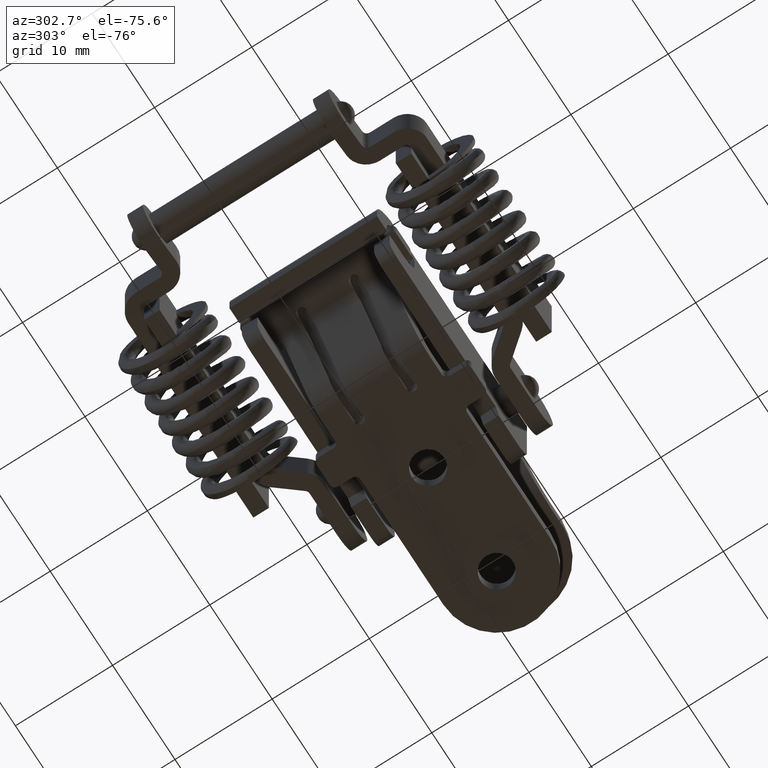
[diagram: clean part render]
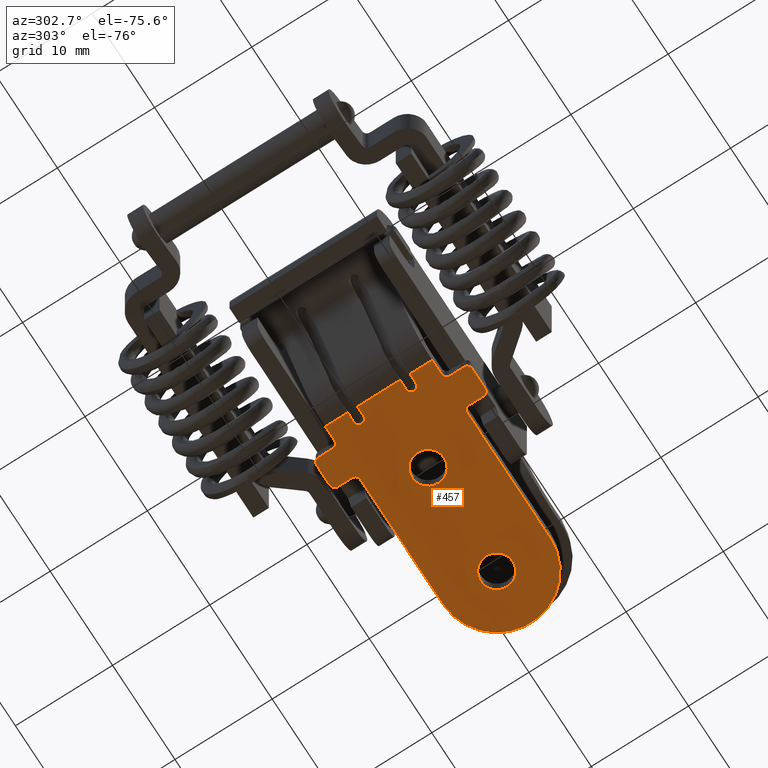
[diagram: same view with one face highlighted and labeled with its STEP entity id]
A machine part, auxiliary view. The second image highlights one B-rep face of the part: STEP entity #457.
In plain terms, the highlighted planar face has unit normal (0, 0, -1).
Its self-contained STEP definition (entity closure, byte-faithful):
#457=ADVANCED_FACE('',(#2818,#2819,#2820),#2817,.T.);
#2817=PLANE('',#8690);
#2818=FACE_OUTER_BOUND('',#8691,.T.);
#2819=FACE_BOUND('',#8692,.T.);
#2820=FACE_BOUND('',#8693,.T.);
#8687=CARTESIAN_POINT('',(1.90400000000E+01,-1.99999999950E+00,-6.00000000000E+00));
#8688=DIRECTION('',(0.00000000000E+00,0.00000000000E+00,-1.00000000000E+00));
#8689=DIRECTION('',(-1.00000000000E+00,0.00000000000E+00,0.00000000000E+00));
#8690=AXIS2_PLACEMENT_3D('',#8687,#8688,#8689);
#8691=EDGE_LOOP('',(#10299,#10300,#10301,#10302,#10303,#10304,#10305,#10306,#10307,#10308,#10309,#10310,#10311,#10312,#10313,#10314,#10315,#10316,#10317,#10318,#10319,#10320,#10321,#10322,#10323,#10324,#10325,#10326));
#8692=EDGE_LOOP('',(#10327,#10328));
#8693=EDGE_LOOP('',(#10329,#10330));
#10299=ORIENTED_EDGE('',*,*,#11430,.F.);
#10300=ORIENTED_EDGE('',*,*,#11431,.T.);
#10301=ORIENTED_EDGE('',*,*,#11432,.T.);
#10302=ORIENTED_EDGE('',*,*,#11433,.F.);
#10303=ORIENTED_EDGE('',*,*,#11434,.T.);
#10304=ORIENTED_EDGE('',*,*,#11435,.T.);
#10305=ORIENTED_EDGE('',*,*,#11436,.F.);
#10306=ORIENTED_EDGE('',*,*,#11437,.T.);
#10307=ORIENTED_EDGE('',*,*,#11438,.F.);
#10308=ORIENTED_EDGE('',*,*,#11439,.F.);
#10309=ORIENTED_EDGE('',*,*,#11440,.F.);
#10310=ORIENTED_EDGE('',*,*,#11310,.F.);
#10311=ORIENTED_EDGE('',*,*,#11397,.T.);
#10312=ORIENTED_EDGE('',*,*,#11394,.T.);
#10313=ORIENTED_EDGE('',*,*,#11392,.F.);
#10314=ORIENTED_EDGE('',*,*,#11315,.F.);
#10315=ORIENTED_EDGE('',*,*,#11270,.T.);
#10316=ORIENTED_EDGE('',*,*,#11273,.F.);
#10317=ORIENTED_EDGE('',*,*,#11279,.F.);
#10318=ORIENTED_EDGE('',*,*,#11441,.T.);
#10319=ORIENTED_EDGE('',*,*,#11442,.T.);
#10320=ORIENTED_EDGE('',*,*,#11443,.T.);
#10321=ORIENTED_EDGE('',*,*,#11444,.T.);
#10322=ORIENTED_EDGE('',*,*,#11445,.F.);
#10323=ORIENTED_EDGE('',*,*,#11446,.T.);
#10324=ORIENTED_EDGE('',*,*,#11447,.F.);
#10325=ORIENTED_EDGE('',*,*,#11448,.F.);
#10326=ORIENTED_EDGE('',*,*,#11449,.T.);
#10327=ORIENTED_EDGE('',*,*,#11450,.F.);
#10328=ORIENTED_EDGE('',*,*,#11451,.F.);
#10329=ORIENTED_EDGE('',*,*,#11452,.F.);
#10330=ORIENTED_EDGE('',*,*,#11453,.F.);
#11270=EDGE_CURVE('',#14487,#14502,#14509,.T.);
#11273=EDGE_CURVE('',#14522,#14502,#14529,.T.);
#11279=EDGE_CURVE('',#14562,#14522,#14569,.T.);
#11310=EDGE_CURVE('',#14766,#14773,#14774,.T.);
#11315=EDGE_CURVE('',#14487,#14806,#14807,.T.);
#11392=EDGE_CURVE('',#14806,#15319,#15320,.T.);
#11394=EDGE_CURVE('',#15332,#15319,#15333,.T.);
#11397=EDGE_CURVE('',#14766,#15332,#15351,.T.);
#11430=EDGE_CURVE('',#15561,#15562,#15563,.T.);
#11431=EDGE_CURVE('',#15561,#15569,#15570,.T.);
#11432=EDGE_CURVE('',#15569,#15576,#15577,.T.);
#11433=EDGE_CURVE('',#15583,#15576,#15584,.T.);
#11434=EDGE_CURVE('',#15583,#15590,#15591,.T.);
#11435=EDGE_CURVE('',#15590,#15597,#15598,.T.);
#11436=EDGE_CURVE('',#15604,#15597,#15605,.T.);
#11437=EDGE_CURVE('',#15604,#15611,#15612,.T.);
#11438=EDGE_CURVE('',#15618,#15611,#15619,.T.);
#11439=EDGE_CURVE('',#15625,#15618,#15626,.T.);
#11440=EDGE_CURVE('',#14773,#15625,#15632,.T.);
#11441=EDGE_CURVE('',#14562,#15638,#15639,.T.);
#11442=EDGE_CURVE('',#15638,#15645,#15646,.T.);
#11443=EDGE_CURVE('',#15645,#15652,#15653,.T.);
#11444=EDGE_CURVE('',#15652,#15659,#15660,.T.);
#11445=EDGE_CURVE('',#15666,#15659,#15667,.T.);
#11446=EDGE_CURVE('',#15666,#15673,#15674,.T.);
#11447=EDGE_CURVE('',#15680,#15673,#15681,.T.);
#11448=EDGE_CURVE('',#15687,#15680,#15688,.T.);
#11449=EDGE_CURVE('',#15687,#15562,#15694,.T.);
#11450=EDGE_CURVE('',#15700,#15701,#15702,.T.);
#11451=EDGE_CURVE('',#15701,#15700,#15708,.T.);
#11452=EDGE_CURVE('',#15714,#15715,#15716,.T.);
#11453=EDGE_CURVE('',#15715,#15714,#15722,.T.);
#14487=VERTEX_POINT('',#19393);
#14502=VERTEX_POINT('',#19403);
#14509=LINE('',#19408,#19409);
#14522=VERTEX_POINT('',#19416);
#14529=CIRCLE('',#19424,5.00000000000E-01);
#14562=VERTEX_POINT('',#19443);
#14569=LINE('',#19448,#19449);
#14766=VERTEX_POINT('',#19574);
#14773=VERTEX_POINT('',#19579);
#14774=LINE('',#19580,#19581);
#14806=VERTEX_POINT('',#19598);
#14807=LINE('',#19599,#19600);
#15319=VERTEX_POINT('',#19933);
#15320=LINE('',#19934,#19935);
#15332=VERTEX_POINT('',#19941);
#15333=CIRCLE('',#19945,5.00000000000E-01);
#15351=LINE('',#19954,#19955);
#15561=VERTEX_POINT('',#20087);
#15562=VERTEX_POINT('',#20088);
#15563=LINE('',#20089,#20090);
#15569=VERTEX_POINT('',#20092);
#15570=CIRCLE('',#20096,5.49999999999E+00);
#15576=VERTEX_POINT('',#20097);
#15577=LINE('',#20098,#20099);
#15583=VERTEX_POINT('',#20101);
#15584=CIRCLE('',#20105,5.00000000000E-01);
#15590=VERTEX_POINT('',#20106);
#15591=LINE('',#20107,#20108);
#15597=VERTEX_POINT('',#20110);
#15598=CIRCLE('',#20114,5.00000000000E-01);
#15604=VERTEX_POINT('',#20115);
#15605=LINE('',#20116,#20117);
#15611=VERTEX_POINT('',#20119);
#15612=CIRCLE('',#20123,5.00000000000E-01);
#15618=VERTEX_POINT('',#20124);
#15619=LINE('',#20125,#20126);
#15625=VERTEX_POINT('',#20128);
#15626=CIRCLE('',#20132,5.00000000000E-01);
#15632=LINE('',#20133,#20134);
#15638=VERTEX_POINT('',#20136);
#15639=LINE('',#20137,#20138);
#15645=VERTEX_POINT('',#20140);
#15646=LINE('',#20141,#20142);
#15652=VERTEX_POINT('',#20144);
#15653=CIRCLE('',#20148,5.00000000000E-01);
#15659=VERTEX_POINT('',#20149);
#15660=LINE('',#20150,#20151);
#15666=VERTEX_POINT('',#20153);
#15667=CIRCLE('',#20157,5.00000000000E-01);
#15673=VERTEX_POINT('',#20158);
#15674=LINE('',#20159,#20160);
#15680=VERTEX_POINT('',#20162);
#15681=CIRCLE('',#20166,5.00000000000E-01);
#15687=VERTEX_POINT('',#20167);
#15688=LINE('',#20168,#20169);
#15694=CIRCLE('',#20174,5.00000000000E-01);
#15700=VERTEX_POINT('',#20175);
#15701=VERTEX_POINT('',#20176);
#15702=CIRCLE('',#20180,1.65000000000E+00);
#15708=CIRCLE('',#20184,1.65000000000E+00);
#15714=VERTEX_POINT('',#20185);
#15715=VERTEX_POINT('',#20186);
#15716=CIRCLE('',#20190,1.65000000000E+00);
#15722=CIRCLE('',#20194,1.65000000000E+00);
#19393=CARTESIAN_POINT('',(-7.79999999998E+00,9.80000000002E+00,-6.00000000000E+00));
#19403=CARTESIAN_POINT('',(-6.79999999998E+00,9.80000000002E+00,-6.00000000000E+00));
#19408=CARTESIAN_POINT('',(-7.79999999998E+00,9.80000000002E+00,-6.00000000000E+00));
#19409=VECTOR('',#19410,1.00000000000E+00);
#19410=DIRECTION('',(1.00000000000E+00,0.00000000000E+00,0.00000000000E+00));
#19416=CARTESIAN_POINT('',(-6.79999999998E+00,1.08000000000E+01,-6.00000000000E+00));
#19421=CARTESIAN_POINT('',(-6.79999999998E+00,1.03000000000E+01,-6.00000000000E+00));
#19422=DIRECTION('',(0.00000000000E+00,0.00000000000E+00,-1.00000000000E+00));
#19423=DIRECTION('',(-0.00000000000E+00,-1.00000000000E+00,-0.00000000000E+00));
#19424=AXIS2_PLACEMENT_3D('',#19421,#19422,#19423);
#19443=CARTESIAN_POINT('',(-7.79999999998E+00,1.08000000000E+01,-6.00000000000E+00));
#19448=CARTESIAN_POINT('',(-7.79999999998E+00,1.08000000000E+01,-6.00000000000E+00));
#19449=VECTOR('',#19450,1.00000000000E+00);
#19450=DIRECTION('',(1.00000000000E+00,0.00000000000E+00,0.00000000000E+00));
#19574=CARTESIAN_POINT('',(-7.79999999998E+00,4.40000000051E+00,-6.00000000000E+00));
#19579=CARTESIAN_POINT('',(-7.79999999998E+00,2.10000000022E+00,-6.00000000000E+00));
#19580=CARTESIAN_POINT('',(-7.79999999998E+00,4.40000000051E+00,-6.00000000000E+00));
#19581=VECTOR('',#19582,2.30000000029E+00);
#19582=DIRECTION('',(0.00000000000E+00,-1.00000000000E+00,0.00000000000E+00));
#19598=CARTESIAN_POINT('',(-7.79999999998E+00,5.40000000051E+00,-6.00000000000E+00));
#19599=CARTESIAN_POINT('',(-7.79999999998E+00,9.80000000002E+00,-6.00000000000E+00));
#19600=VECTOR('',#19601,4.39999999951E+00);
#19601=DIRECTION('',(0.00000000000E+00,-1.00000000000E+00,0.00000000000E+00));
#19933=CARTESIAN_POINT('',(-6.79999999998E+00,5.40000000051E+00,-6.00000000000E+00));
#19934=CARTESIAN_POINT('',(-7.79999999998E+00,5.40000000051E+00,-6.00000000000E+00));
#19935=VECTOR('',#19936,1.00000000000E+00);
#19936=DIRECTION('',(1.00000000000E+00,0.00000000000E+00,0.00000000000E+00));
#19941=CARTESIAN_POINT('',(-6.79999999998E+00,4.40000000051E+00,-6.00000000000E+00));
#19942=CARTESIAN_POINT('',(-6.79999999998E+00,4.90000000051E+00,-6.00000000000E+00));
#19943=DIRECTION('',(0.00000000000E+00,0.00000000000E+00,1.00000000000E+00));
#19944=DIRECTION('',(-0.00000000000E+00,1.00000000000E+00,-0.00000000000E+00));
#19945=AXIS2_PLACEMENT_3D('',#19942,#19943,#19944);
#19954=CARTESIAN_POINT('',(-7.79999999998E+00,4.40000000051E+00,-6.00000000000E+00));
#19955=VECTOR('',#19956,1.00000000000E+00);
#19956=DIRECTION('',(1.00000000000E+00,0.00000000000E+00,0.00000000000E+00));
#20087=CARTESIAN_POINT('',(1.11000000000E+01,1.31000000004E+01,-6.00000000000E+00));
#20088=CARTESIAN_POINT('',(-2.19999999999E+00,1.31000000003E+01,-6.00000000000E+00));
#20089=CARTESIAN_POINT('',(1.11000000000E+01,1.31000000004E+01,-6.00000000000E+00));
#20090=VECTOR('',#20091,1.33000000000E+01);
#20091=DIRECTION('',(-1.00000000000E+00,-7.51879761459E-12,0.00000000000E+00));
#20092=CARTESIAN_POINT('',(1.11000000000E+01,2.10000000016E+00,-6.00000000000E+00));
#20093=CARTESIAN_POINT('',(1.11000000000E+01,7.60000000015E+00,-6.00000000000E+00));
#20094=DIRECTION('',(0.00000000000E+00,0.00000000000E+00,-1.00000000000E+00));
#20095=DIRECTION('',(-0.00000000000E+00,-1.00000000000E+00,-0.00000000000E+00));
#20096=AXIS2_PLACEMENT_3D('',#20093,#20094,#20095);
#20097=CARTESIAN_POINT('',(-2.19999999999E+00,2.10000000020E+00,-6.00000000000E+00));
#20098=CARTESIAN_POINT('',(1.11000000000E+01,2.10000000016E+00,-6.00000000000E+00));
#20099=VECTOR('',#20100,1.33000000000E+01);
#20100=DIRECTION('',(-1.00000000000E+00,3.00751904584E-12,0.00000000000E+00));
#20101=CARTESIAN_POINT('',(-2.69999999999E+00,1.60000000020E+00,-6.00000000000E+00));
#20102=CARTESIAN_POINT('',(-2.19999999999E+00,1.60000000020E+00,-6.00000000000E+00));
#20103=DIRECTION('',(0.00000000000E+00,0.00000000000E+00,-1.00000000000E+00));
#20104=DIRECTION('',(1.00000000000E+00,-0.00000000000E+00,-0.00000000000E+00));
#20105=AXIS2_PLACEMENT_3D('',#20102,#20103,#20104);
#20106=CARTESIAN_POINT('',(-2.70000000000E+00,1.00000000459E-01,-6.00000000000E+00));
#20107=CARTESIAN_POINT('',(-2.69999999999E+00,1.60000000020E+00,-6.00000000000E+00));
#20108=VECTOR('',#20109,1.49999999974E+00);
#20109=DIRECTION('',(-6.66666721942E-12,-1.00000000000E+00,0.00000000000E+00));
#20110=CARTESIAN_POINT('',(-3.20000000000E+00,-3.99999999540E-01,-6.00000000000E+00));
#20111=CARTESIAN_POINT('',(-3.20000000000E+00,1.00000000460E-01,-6.00000000000E+00));
#20112=DIRECTION('',(0.00000000000E+00,0.00000000000E+00,-1.00000000000E+00));
#20113=DIRECTION('',(-1.00000000000E+00,2.00001126771E-12,-0.00000000000E+00));
#20114=AXIS2_PLACEMENT_3D('',#20111,#20112,#20113);
#20115=CARTESIAN_POINT('',(-5.30000000000E+00,-3.99999999513E-01,-6.00000000000E+00));
#20116=CARTESIAN_POINT('',(-5.30000000000E+00,-3.99999999513E-01,-6.00000000000E+00));
#20117=VECTOR('',#20118,2.10000000000E+00);
#20118=DIRECTION('',(1.00000000000E+00,-1.28571227738E-11,0.00000000000E+00));
#20119=CARTESIAN_POINT('',(-5.80000000000E+00,1.00000000466E-01,-6.00000000000E+00));
#20120=CARTESIAN_POINT('',(-5.30000000000E+00,1.00000000487E-01,-6.00000000000E+00));
#20121=DIRECTION('',(0.00000000000E+00,0.00000000000E+00,-1.00000000000E+00));
#20122=DIRECTION('',(-0.00000000000E+00,1.00000000000E+00,-0.00000000000E+00));
#20123=AXIS2_PLACEMENT_3D('',#20120,#20121,#20122);
#20124=CARTESIAN_POINT('',(-5.79999999999E+00,1.60000000022E+00,-6.00000000000E+00));
#20125=CARTESIAN_POINT('',(-5.79999999999E+00,1.60000000022E+00,-6.00000000000E+00));
#20126=VECTOR('',#20127,1.49999999975E+00);
#20127=DIRECTION('',(-6.66666721936E-12,-1.00000000000E+00,0.00000000000E+00));
#20128=CARTESIAN_POINT('',(-6.29999999999E+00,2.10000000022E+00,-6.00000000000E+00));
#20129=CARTESIAN_POINT('',(-6.29999999999E+00,1.60000000022E+00,-6.00000000000E+00));
#20130=DIRECTION('',(0.00000000000E+00,0.00000000000E+00,-1.00000000000E+00));
#20131=DIRECTION('',(-0.00000000000E+00,-1.00000000000E+00,-0.00000000000E+00));
#20132=AXIS2_PLACEMENT_3D('',#20129,#20130,#20131);
#20133=CARTESIAN_POINT('',(-7.79999999998E+00,2.10000000022E+00,-6.00000000000E+00));
#20134=VECTOR('',#20135,1.49999999999E+00);
#20135=DIRECTION('',(1.00000000000E+00,0.00000000000E+00,0.00000000000E+00));
#20136=CARTESIAN_POINT('',(-7.79999999998E+00,1.31000000003E+01,-6.00000000000E+00));
#20137=CARTESIAN_POINT('',(-7.79999999998E+00,1.08000000000E+01,-6.00000000000E+00));
#20138=VECTOR('',#20139,2.30000000030E+00);
#20139=DIRECTION('',(0.00000000000E+00,1.00000000000E+00,0.00000000000E+00));
#20140=CARTESIAN_POINT('',(-6.29999999999E+00,1.31000000003E+01,-6.00000000000E+00));
#20141=CARTESIAN_POINT('',(-7.79999999998E+00,1.31000000003E+01,-6.00000000000E+00));
#20142=VECTOR('',#20143,1.49999999999E+00);
#20143=DIRECTION('',(1.00000000000E+00,0.00000000000E+00,0.00000000000E+00));
#20144=CARTESIAN_POINT('',(-5.79999999999E+00,1.36000000003E+01,-6.00000000000E+00));
#20145=CARTESIAN_POINT('',(-6.29999999999E+00,1.36000000003E+01,-6.00000000000E+00));
#20146=DIRECTION('',(0.00000000000E+00,0.00000000000E+00,1.00000000000E+00));
#20147=DIRECTION('',(-0.00000000000E+00,1.00000000000E+00,-0.00000000000E+00));
#20148=AXIS2_PLACEMENT_3D('',#20145,#20146,#20147);
#20149=CARTESIAN_POINT('',(-5.80000000000E+00,1.51000000001E+01,-6.00000000000E+00));
#20150=CARTESIAN_POINT('',(-5.79999999999E+00,1.36000000003E+01,-6.00000000000E+00));
#20151=VECTOR('',#20152,1.49999999980E+00);
#20152=DIRECTION('',(-6.66666721916E-12,1.00000000000E+00,0.00000000000E+00));
#20153=CARTESIAN_POINT('',(-5.30000000000E+00,1.56000000000E+01,-6.00000000000E+00));
#20154=CARTESIAN_POINT('',(-5.30000000000E+00,1.51000000000E+01,-6.00000000000E+00));
#20155=DIRECTION('',(0.00000000000E+00,-0.00000000000E+00,1.00000000000E+00));
#20156=DIRECTION('',(-0.00000000000E+00,-1.00000000000E+00,-0.00000000000E+00));
#20157=AXIS2_PLACEMENT_3D('',#20154,#20155,#20156);
#20158=CARTESIAN_POINT('',(-3.20000000000E+00,1.56000000001E+01,-6.00000000000E+00));
#20159=CARTESIAN_POINT('',(-5.30000000000E+00,1.56000000000E+01,-6.00000000000E+00));
#20160=VECTOR('',#20161,2.10000000000E+00);
#20161=DIRECTION('',(1.00000000000E+00,4.76190515591E-11,0.00000000000E+00));
#20162=CARTESIAN_POINT('',(-2.70000000000E+00,1.51000000001E+01,-6.00000000000E+00));
#20163=CARTESIAN_POINT('',(-3.20000000000E+00,1.51000000001E+01,-6.00000000000E+00));
#20164=DIRECTION('',(0.00000000000E+00,-0.00000000000E+00,1.00000000000E+00));
#20165=DIRECTION('',(-1.00000000000E+00,-0.00000000000E+00,-0.00000000000E+00));
#20166=AXIS2_PLACEMENT_3D('',#20163,#20164,#20165);
#20167=CARTESIAN_POINT('',(-2.69999999999E+00,1.36000000003E+01,-6.00000000000E+00));
#20168=CARTESIAN_POINT('',(-2.69999999999E+00,1.36000000003E+01,-6.00000000000E+00));
#20169=VECTOR('',#20170,1.49999999980E+00);
#20170=DIRECTION('',(-6.66666721916E-12,1.00000000000E+00,0.00000000000E+00));
#20171=CARTESIAN_POINT('',(-2.19999999999E+00,1.36000000003E+01,-6.00000000000E+00));
#20172=DIRECTION('',(0.00000000000E+00,0.00000000000E+00,1.00000000000E+00));
#20173=DIRECTION('',(1.00000000000E+00,-0.00000000000E+00,-0.00000000000E+00));
#20174=AXIS2_PLACEMENT_3D('',#20171,#20172,#20173);
#20175=CARTESIAN_POINT('',(1.27500000000E+01,7.60000000016E+00,-6.00000000000E+00));
#20176=CARTESIAN_POINT('',(9.45000000000E+00,7.60000000016E+00,-6.00000000000E+00));
#20177=CARTESIAN_POINT('',(1.11000000000E+01,7.60000000016E+00,-6.00000000000E+00));
#20178=DIRECTION('',(0.00000000000E+00,0.00000000000E+00,-1.00000000000E+00));
#20179=DIRECTION('',(-1.00000000000E+00,-0.00000000000E+00,-0.00000000000E+00));
#20180=AXIS2_PLACEMENT_3D('',#20177,#20178,#20179);
#20181=CARTESIAN_POINT('',(1.11000000000E+01,7.60000000016E+00,-6.00000000000E+00));
#20182=DIRECTION('',(0.00000000000E+00,0.00000000000E+00,-1.00000000000E+00));
#20183=DIRECTION('',(-1.00000000000E+00,-0.00000000000E+00,-0.00000000000E+00));
#20184=AXIS2_PLACEMENT_3D('',#20181,#20182,#20183);
#20185=CARTESIAN_POINT('',(1.75000000001E+00,7.60000000019E+00,-6.00000000000E+00));
#20186=CARTESIAN_POINT('',(-1.54999999999E+00,7.60000000019E+00,-6.00000000000E+00));
#20187=CARTESIAN_POINT('',(1.00000000013E-01,7.60000000019E+00,-6.00000000000E+00));
#20188=DIRECTION('',(0.00000000000E+00,0.00000000000E+00,-1.00000000000E+00));
#20189=DIRECTION('',(-1.00000000000E+00,-0.00000000000E+00,-0.00000000000E+00));
#20190=AXIS2_PLACEMENT_3D('',#20187,#20188,#20189);
#20191=CARTESIAN_POINT('',(1.00000000013E-01,7.60000000019E+00,-6.00000000000E+00));
#20192=DIRECTION('',(0.00000000000E+00,0.00000000000E+00,-1.00000000000E+00));
#20193=DIRECTION('',(-1.00000000000E+00,-0.00000000000E+00,-0.00000000000E+00));
#20194=AXIS2_PLACEMENT_3D('',#20191,#20192,#20193);